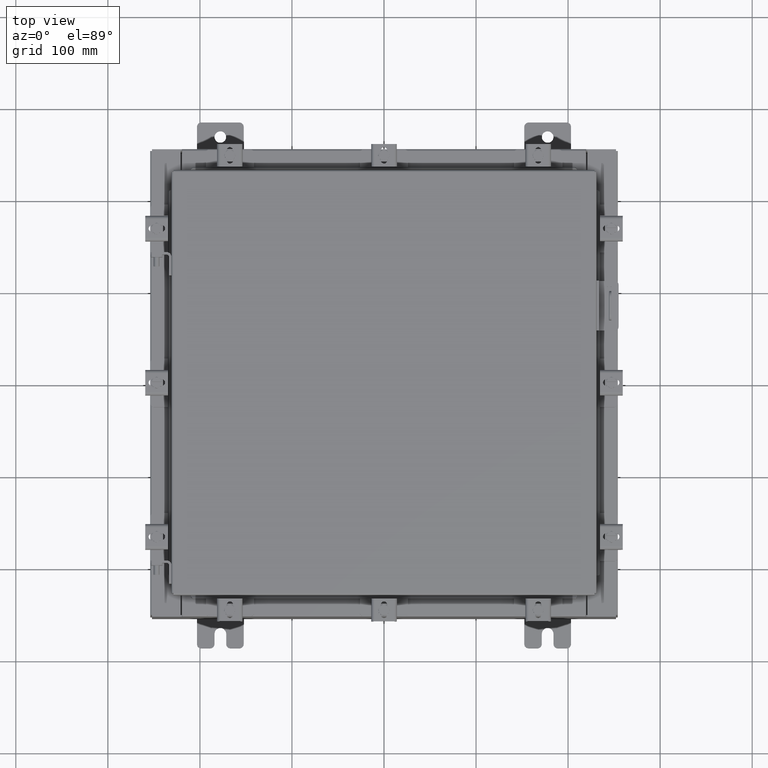
[diagram: clean part render]
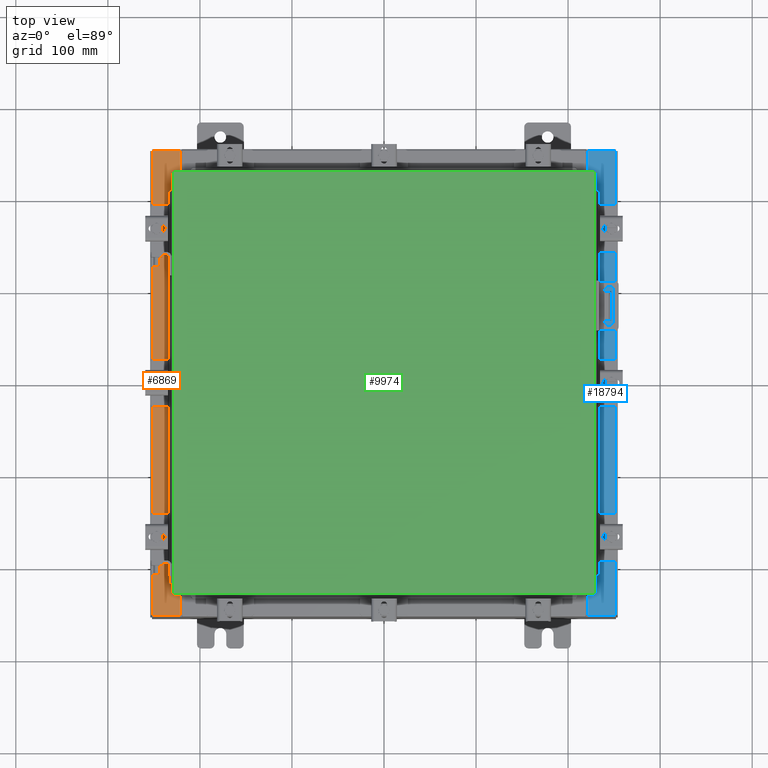
[diagram: same view with three faces highlighted in distinct colors, each labeled with its STEP entity id]
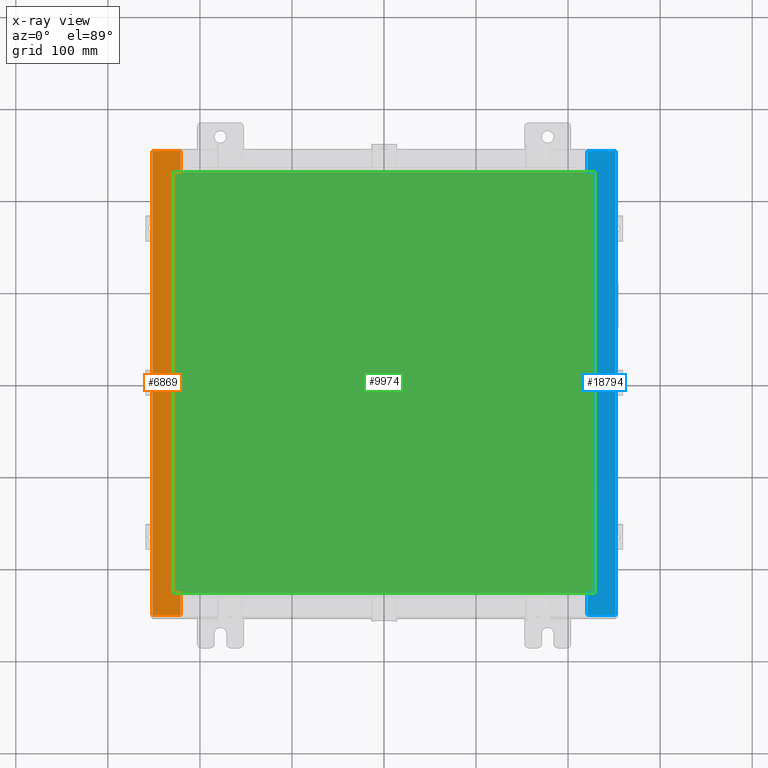
[diagram: x-ray of the same camera — body ghosted, the three highlighted faces saturated]
A machine part, top view with three faces highlighted in distinct colors.
The next image is the same camera in x-ray (body ghosted, the three faces saturated) — at least one of them is partly hidden behind the body in this view.
Their STEP definitions:

[orange] entity #6869 — the highlighted planar face has unit normal (0, -0, -1).
#27 = VECTOR ( 'NONE', #8534, 39.37007874015748100 ) ;
#179 = CIRCLE ( 'NONE', #11631, 0.01867499999999949400 ) ;
#198 = CARTESIAN_POINT ( 'NONE',  ( -8.699700000000019500, -6.316282040856369400E-016, 5.925300000000008000 ) ) ;
#333 = CARTESIAN_POINT ( 'NONE',  ( -8.750050000000023000, 8.593749999999998200, 5.925300000000008000 ) ) ;
#467 = VECTOR ( 'NONE', #1986, 39.37007874015748100 ) ;
#1004 = LINE ( 'NONE', #198, #467 ) ;
#1140 = ORIENTED_EDGE ( 'NONE', *, *, #18604, .F. ) ;
#1303 = AXIS2_PLACEMENT_3D ( 'NONE', #2077, #14276, #3800 ) ;
#1462 = DIRECTION ( 'NONE',  ( -1.000000000000000000, 3.566381192773190000E-015, -7.132762385546365800E-015 ) ) ;
#1624 = DIRECTION ( 'NONE',  ( -1.000000000000000000, 0.0000000000000000000, 0.0000000000000000000 ) ) ;
#1711 = CARTESIAN_POINT ( 'NONE',  ( -9.912300000000019700, -9.925299999999992900, 5.925299999999999100 ) ) ;
#1736 = LINE ( 'NONE', #5111, #15096 ) ;
#1924 = ORIENTED_EDGE ( 'NONE', *, *, #12157, .T. ) ;
#1986 = DIRECTION ( 'NONE',  ( -1.100963394019027400E-016, 1.000000000000000000, -5.504816970095217300E-017 ) ) ;
#2077 = CARTESIAN_POINT ( 'NONE',  ( -8.750050000000023000, -8.612425000000007100, 5.925300000000007100 ) ) ;
#2118 = ORIENTED_EDGE ( 'NONE', *, *, #21176, .F. ) ;
#2362 = VERTEX_POINT ( 'NONE', #10740 ) ;
#2538 = VERTEX_POINT ( 'NONE', #9430 ) ;
#2878 = DIRECTION ( 'NONE',  ( 1.000000000000000000, -2.170286390199814100E-014, 2.170286390199814100E-014 ) ) ;
#3055 = EDGE_CURVE ( 'NONE', #20163, #18557, #11745, .T. ) ;
#3220 = CARTESIAN_POINT ( 'NONE',  ( -8.750050000000023000, 8.593749999999998200, 5.925300000000007100 ) ) ;
#3800 = DIRECTION ( 'NONE',  ( 1.000000000000000000, 0.0000000000000000000, 0.0000000000000000000 ) ) ;
#4697 = AXIS2_PLACEMENT_3D ( 'NONE', #15528, #22559, #12166 ) ;
#5111 = CARTESIAN_POINT ( 'NONE',  ( -8.712700000000021200, -8.593750000000008900, 5.925300000000007100 ) ) ;
#5177 = CARTESIAN_POINT ( 'NONE',  ( -8.750050000000023000, -8.593750000000008900, 5.925300000000008000 ) ) ;
#6288 = FACE_OUTER_BOUND ( 'NONE', #13273, .T. ) ;
#6490 = VECTOR ( 'NONE', #8003, 39.37007874015748100 ) ;
#6494 = CARTESIAN_POINT ( 'NONE',  ( -8.699700000000017800, -8.631100000000007100, 5.925300000000008000 ) ) ;
#6869 = ADVANCED_FACE ( 'NONE', ( #6288 ), #6904, .F. ) ;
#6904 = PLANE ( 'NONE',  #4697 ) ;
#6983 = DIRECTION ( 'NONE',  ( -1.000000000000000000, -2.170286390199908100E-014, -2.170286390199908100E-014 ) ) ;
#7011 = ORIENTED_EDGE ( 'NONE', *, *, #17493, .F. ) ;
#7110 = VECTOR ( 'NONE', #22415, 39.37007874015748100 ) ;
#7753 = ORIENTED_EDGE ( 'NONE', *, *, #3055, .F. ) ;
#8003 = DIRECTION ( 'NONE',  ( 1.000000000000000000, -8.915952981932958000E-015, 7.132762385546365800E-015 ) ) ;
#8110 = VERTEX_POINT ( 'NONE', #19032 ) ;
#8141 = CARTESIAN_POINT ( 'NONE',  ( -8.750050000000023000, 8.631099999999998200, 5.925300000000007100 ) ) ;
#8240 = CARTESIAN_POINT ( 'NONE',  ( -8.699700000000019500, 9.925299999999998200, 5.925300000000008000 ) ) ;
#8534 = DIRECTION ( 'NONE',  ( -0.0000000000000000000, 1.000000000000000000, -5.504816970095139000E-017 ) ) ;
#9223 = VERTEX_POINT ( 'NONE', #15290 ) ;
#9250 = ORIENTED_EDGE ( 'NONE', *, *, #11535, .T. ) ;
#9420 = ORIENTED_EDGE ( 'NONE', *, *, #17098, .F. ) ;
#9430 = CARTESIAN_POINT ( 'NONE',  ( -8.699700000000019500, 8.631100000000000000, 5.925300000000008000 ) ) ;
#10037 = ORIENTED_EDGE ( 'NONE', *, *, #11575, .F. ) ;
#10248 = CARTESIAN_POINT ( 'NONE',  ( -8.750050000000023000, 8.612424999999998200, 5.925300000000007100 ) ) ;
#10503 = VERTEX_POINT ( 'NONE', #5177 ) ;
#10511 = CARTESIAN_POINT ( 'NONE',  ( -8.699700000000019500, 8.631100000000000000, 5.925300000000008000 ) ) ;
#10610 = LINE ( 'NONE', #15111, #19314 ) ;
#10740 = CARTESIAN_POINT ( 'NONE',  ( -8.699700000000017800, -9.925300000000005300, 5.925300000000008000 ) ) ;
#11133 = LINE ( 'NONE', #18432, #6490 ) ;
#11535 = EDGE_CURVE ( 'NONE', #13320, #2362, #11133, .T. ) ;
#11575 = EDGE_CURVE ( 'NONE', #8110, #14248, #10610, .T. ) ;
#11631 = AXIS2_PLACEMENT_3D ( 'NONE', #10248, #22385, #11979 ) ;
#11745 = LINE ( 'NONE', #3220, #7110 ) ;
#11747 = ORIENTED_EDGE ( 'NONE', *, *, #15087, .T. ) ;
#11887 = CARTESIAN_POINT ( 'NONE',  ( -8.712700000000021200, -8.593750000000008900, 5.925300000000007100 ) ) ;
#11979 = DIRECTION ( 'NONE',  ( 1.000000000000000000, 0.0000000000000000000, 0.0000000000000000000 ) ) ;
#12157 = EDGE_CURVE ( 'NONE', #2362, #14248, #22054, .T. ) ;
#12166 = DIRECTION ( 'NONE',  ( -1.000000000000000000, 0.0000000000000000000, -7.132762385546365800E-015 ) ) ;
#12585 = ORIENTED_EDGE ( 'NONE', *, *, #14545, .F. ) ;
#13273 = EDGE_LOOP ( 'NONE', ( #9420, #11747, #14459, #1140, #9250, #1924, #10037, #12585, #7011, #16149, #7753, #2118 ) ) ;
#13320 = VERTEX_POINT ( 'NONE', #1711 ) ;
#13400 = LINE ( 'NONE', #17199, #27 ) ;
#13537 = CARTESIAN_POINT ( 'NONE',  ( -8.712700000000021200, 8.593749999999998200, 5.925300000000007100 ) ) ;
#13969 = VECTOR ( 'NONE', #1462, 39.37007874015748100 ) ;
#14248 = VERTEX_POINT ( 'NONE', #6494 ) ;
#14276 = DIRECTION ( 'NONE',  ( -7.132762385546365800E-015, 5.504816970095138400E-017, 1.000000000000000000 ) ) ;
#14459 = ORIENTED_EDGE ( 'NONE', *, *, #18002, .T. ) ;
#14518 = LINE ( 'NONE', #22268, #13969 ) ;
#14545 = EDGE_CURVE ( 'NONE', #10503, #8110, #19278, .T. ) ;
#14548 = DIRECTION ( 'NONE',  ( -0.0000000000000000000, -1.000000000000000000, -0.0000000000000000000 ) ) ;
#14769 = DIRECTION ( 'NONE',  ( -1.100963394019027400E-016, 1.000000000000000000, -5.504816970095217300E-017 ) ) ;
#14924 = VERTEX_POINT ( 'NONE', #8240 ) ;
#15087 = EDGE_CURVE ( 'NONE', #2538, #14924, #1004, .T. ) ;
#15096 = VECTOR ( 'NONE', #1624, 39.37007874015748100 ) ;
#15111 = CARTESIAN_POINT ( 'NONE',  ( -8.750050000000023000, -8.631100000000008900, 5.925300000000007100 ) ) ;
#15290 = CARTESIAN_POINT ( 'NONE',  ( -9.912300000000019700, 9.925300000000001800, 5.925299999999999100 ) ) ;
#15528 = CARTESIAN_POINT ( 'NONE',  ( -4.253145845136049800E-014, 3.261769198526533300E-016, 5.925300000000070200 ) ) ;
#15935 = VECTOR ( 'NONE', #6983, 39.37007874015748100 ) ;
#16149 = ORIENTED_EDGE ( 'NONE', *, *, #21526, .F. ) ;
#16453 = CARTESIAN_POINT ( 'NONE',  ( -8.699700000000019500, -6.316282040856369400E-016, 5.925300000000008000 ) ) ;
#16466 = LINE ( 'NONE', #10511, #15935 ) ;
#17098 = EDGE_CURVE ( 'NONE', #2538, #17915, #16466, .T. ) ;
#17199 = CARTESIAN_POINT ( 'NONE',  ( -9.912300000000019700, 9.925300000000000000, 5.925299999999999100 ) ) ;
#17384 = LINE ( 'NONE', #19784, #20892 ) ;
#17476 = VECTOR ( 'NONE', #14769, 39.37007874015748100 ) ;
#17493 = EDGE_CURVE ( 'NONE', #18007, #10503, #1736, .T. ) ;
#17915 = VERTEX_POINT ( 'NONE', #8141 ) ;
#18002 = EDGE_CURVE ( 'NONE', #14924, #9223, #14518, .T. ) ;
#18007 = VERTEX_POINT ( 'NONE', #11887 ) ;
#18432 = CARTESIAN_POINT ( 'NONE',  ( -1.310262593961222200E-013, -9.925300000000083500, 5.925300000000070200 ) ) ;
#18557 = VERTEX_POINT ( 'NONE', #13537 ) ;
#18604 = EDGE_CURVE ( 'NONE', #13320, #9223, #13400, .T. ) ;
#19032 = CARTESIAN_POINT ( 'NONE',  ( -8.750050000000023000, -8.631100000000008900, 5.925300000000008000 ) ) ;
#19278 = CIRCLE ( 'NONE', #1303, 0.01867499999999949400 ) ;
#19314 = VECTOR ( 'NONE', #2878, 39.37007874015748100 ) ;
#19784 = CARTESIAN_POINT ( 'NONE',  ( -8.712700000000021200, 8.593750000000000000, 5.925300000000007100 ) ) ;
#20163 = VERTEX_POINT ( 'NONE', #333 ) ;
#20892 = VECTOR ( 'NONE', #14548, 39.37007874015748100 ) ;
#21176 = EDGE_CURVE ( 'NONE', #17915, #20163, #179, .T. ) ;
#21526 = EDGE_CURVE ( 'NONE', #18557, #18007, #17384, .T. ) ;
#22054 = LINE ( 'NONE', #16453, #17476 ) ;
#22268 = CARTESIAN_POINT ( 'NONE',  ( -7.119878833487486500E-015, 9.925299999999968000, 5.925300000000070200 ) ) ;
#22385 = DIRECTION ( 'NONE',  ( -7.132762385546365800E-015, 5.504816970095138400E-017, 1.000000000000000000 ) ) ;
#22415 = DIRECTION ( 'NONE',  ( 1.000000000000000000, 0.0000000000000000000, 0.0000000000000000000 ) ) ;
#22559 = DIRECTION ( 'NONE',  ( 7.132762385546365800E-015, -5.504816970095137800E-017, -1.000000000000000000 ) ) ;

[blue] entity #18794 — the highlighted planar face has unit normal (-0, 0, -1).
#730 = CARTESIAN_POINT ( 'NONE',  ( 3.723850296363598500E-014, -3.261769198526533300E-016, 5.925300000000061300 ) ) ;
#1076 = VERTEX_POINT ( 'NONE', #10222 ) ;
#1402 = FACE_OUTER_BOUND ( 'NONE', #16197, .T. ) ;
#1410 = ORIENTED_EDGE ( 'NONE', *, *, #1783, .F. ) ;
#1503 = VERTEX_POINT ( 'NONE', #11283 ) ;
#1725 = CARTESIAN_POINT ( 'NONE',  ( 8.712700000000023000, -8.593750000000005300, 5.925300000000007100 ) ) ;
#1783 = EDGE_CURVE ( 'NONE', #21078, #17461, #2260, .T. ) ;
#2260 = CIRCLE ( 'NONE', #6163, 0.01867500000000058700 ) ;
#2417 = VECTOR ( 'NONE', #6521, 39.37007874015748100 ) ;
#2489 = DIRECTION ( 'NONE',  ( -1.000000000000000000, 0.0000000000000000000, 6.241167087353080700E-015 ) ) ;
#2925 = ORIENTED_EDGE ( 'NONE', *, *, #3136, .T. ) ;
#3136 = EDGE_CURVE ( 'NONE', #18792, #17436, #19372, .T. ) ;
#3915 = EDGE_CURVE ( 'NONE', #12539, #21078, #16614, .T. ) ;
#3934 = ORIENTED_EDGE ( 'NONE', *, *, #4840, .F. ) ;
#4220 = DIRECTION ( 'NONE',  ( 1.000000000000000000, 3.566381192773195500E-015, -6.241167087353082300E-015 ) ) ;
#4400 = CARTESIAN_POINT ( 'NONE',  ( 8.699700000000021300, 6.316282040856369400E-016, 5.925300000000007100 ) ) ;
#4767 = CARTESIAN_POINT ( 'NONE',  ( 1.843997395723377600E-015, 9.925299999999964500, 5.925300000000062200 ) ) ;
#4840 = EDGE_CURVE ( 'NONE', #1503, #1076, #20533, .T. ) ;
#4912 = VERTEX_POINT ( 'NONE', #16901 ) ;
#4963 = CARTESIAN_POINT ( 'NONE',  ( 8.699700000000021300, -9.925300000000001800, 5.925300000000005300 ) ) ;
#5086 = VERTEX_POINT ( 'NONE', #15547 ) ;
#5426 = VERTEX_POINT ( 'NONE', #22294 ) ;
#5449 = EDGE_CURVE ( 'NONE', #4912, #1503, #6624, .T. ) ;
#5628 = EDGE_CURVE ( 'NONE', #19620, #5426, #17786, .T. ) ;
#5687 = VECTOR ( 'NONE', #7650, 39.37007874015748100 ) ;
#5746 = ORIENTED_EDGE ( 'NONE', *, *, #10930, .T. ) ;
#6163 = AXIS2_PLACEMENT_3D ( 'NONE', #10111, #22230, #11861 ) ;
#6508 = CARTESIAN_POINT ( 'NONE',  ( 9.912300000000019700, 9.925299999999998200, 5.925300000000000000 ) ) ;
#6514 = ORIENTED_EDGE ( 'NONE', *, *, #8425, .T. ) ;
#6521 = DIRECTION ( 'NONE',  ( -1.000000000000000000, -3.566381192773189200E-015, 6.241167087353082300E-015 ) ) ;
#6624 = CIRCLE ( 'NONE', #18988, 0.01867500000000058700 ) ;
#6897 = EDGE_CURVE ( 'NONE', #1076, #12539, #10408, .T. ) ;
#7169 = CARTESIAN_POINT ( 'NONE',  ( 9.912300000000019700, -9.925300000000000000, 5.925299999999999100 ) ) ;
#7650 = DIRECTION ( 'NONE',  ( -1.000000000000000000, 2.170286390199861100E-014, 0.0000000000000000000 ) ) ;
#7688 = PLANE ( 'NONE',  #9273 ) ;
#7966 = VECTOR ( 'NONE', #17607, 39.37007874015748100 ) ;
#8143 = VECTOR ( 'NONE', #20350, 39.37007874015748100 ) ;
#8425 = EDGE_CURVE ( 'NONE', #17436, #5426, #12850, .T. ) ;
#8582 = CARTESIAN_POINT ( 'NONE',  ( 8.750050000000023000, 8.631099999999994700, 5.925300000000007100 ) ) ;
#8748 = DIRECTION ( 'NONE',  ( 1.100963394019028000E-016, -1.000000000000000000, -5.504816970095207400E-017 ) ) ;
#8764 = CARTESIAN_POINT ( 'NONE',  ( 8.712700000000023000, 8.593749999999994700, 5.925300000000007100 ) ) ;
#9273 = AXIS2_PLACEMENT_3D ( 'NONE', #730, #12935, #2489 ) ;
#9444 = CARTESIAN_POINT ( 'NONE',  ( 8.699700000000021300, -8.631100000000005300, 5.925300000000007100 ) ) ;
#9768 = DIRECTION ( 'NONE',  ( 1.100963394019028000E-016, -1.000000000000000000, -5.504816970095207400E-017 ) ) ;
#9855 = VECTOR ( 'NONE', #20879, 39.37007874015748100 ) ;
#9915 = ORIENTED_EDGE ( 'NONE', *, *, #16208, .T. ) ;
#10060 = ORIENTED_EDGE ( 'NONE', *, *, #3915, .F. ) ;
#10111 = CARTESIAN_POINT ( 'NONE',  ( 8.750050000000023000, 8.612424999999992900, 5.925300000000007100 ) ) ;
#10222 = CARTESIAN_POINT ( 'NONE',  ( 8.712700000000023000, -8.593750000000005300, 5.925300000000007100 ) ) ;
#10252 = CARTESIAN_POINT ( 'NONE',  ( 8.750050000000023000, -8.612425000000005300, 5.925300000000007100 ) ) ;
#10408 = LINE ( 'NONE', #1725, #9855 ) ;
#10615 = LINE ( 'NONE', #16959, #8143 ) ;
#10930 = EDGE_CURVE ( 'NONE', #19620, #12936, #12255, .T. ) ;
#11283 = CARTESIAN_POINT ( 'NONE',  ( 8.750050000000023000, -8.593750000000005300, 5.925300000000007100 ) ) ;
#11861 = DIRECTION ( 'NONE',  ( 1.000000000000000000, 0.0000000000000000000, 0.0000000000000000000 ) ) ;
#11981 = DIRECTION ( 'NONE',  ( 1.000000000000000000, 0.0000000000000000000, 0.0000000000000000000 ) ) ;
#12165 = CARTESIAN_POINT ( 'NONE',  ( 8.699700000000021300, 6.316282040856369400E-016, 5.925300000000007100 ) ) ;
#12251 = CARTESIAN_POINT ( 'NONE',  ( 8.712700000000023000, 8.593749999999994700, 5.925300000000007100 ) ) ;
#12255 = LINE ( 'NONE', #4767, #2417 ) ;
#12327 = VECTOR ( 'NONE', #4220, 39.37007874015748100 ) ;
#12539 = VERTEX_POINT ( 'NONE', #8764 ) ;
#12823 = CARTESIAN_POINT ( 'NONE',  ( 8.750050000000023000, 8.631099999999994700, 5.925300000000007100 ) ) ;
#12850 = LINE ( 'NONE', #18262, #12327 ) ;
#12935 = DIRECTION ( 'NONE',  ( -6.241167087353080700E-015, 5.504816970095137800E-017, -1.000000000000000000 ) ) ;
#12936 = VERTEX_POINT ( 'NONE', #17926 ) ;
#13215 = VECTOR ( 'NONE', #9768, 39.37007874015748100 ) ;
#13346 = ORIENTED_EDGE ( 'NONE', *, *, #20282, .F. ) ;
#14433 = LINE ( 'NONE', #12823, #5687 ) ;
#14730 = VECTOR ( 'NONE', #8748, 39.37007874015748100 ) ;
#15547 = CARTESIAN_POINT ( 'NONE',  ( 8.699700000000019500, 8.631099999999994700, 5.925300000000007100 ) ) ;
#15934 = VECTOR ( 'NONE', #21799, 39.37007874015748100 ) ;
#16197 = EDGE_LOOP ( 'NONE', ( #19719, #2925, #6514, #16866, #5746, #9915, #13346, #1410, #10060, #22403, #3934, #21241 ) ) ;
#16208 = EDGE_CURVE ( 'NONE', #12936, #5086, #17854, .T. ) ;
#16614 = LINE ( 'NONE', #12251, #20696 ) ;
#16866 = ORIENTED_EDGE ( 'NONE', *, *, #5628, .F. ) ;
#16901 = CARTESIAN_POINT ( 'NONE',  ( 8.750050000000023000, -8.631100000000005300, 5.925300000000007100 ) ) ;
#16959 = CARTESIAN_POINT ( 'NONE',  ( 8.699700000000021300, -8.631100000000005300, 5.925300000000007100 ) ) ;
#17436 = VERTEX_POINT ( 'NONE', #4963 ) ;
#17461 = VERTEX_POINT ( 'NONE', #8582 ) ;
#17607 = DIRECTION ( 'NONE',  ( -0.0000000000000000000, -1.000000000000000000, -5.504816970095139000E-017 ) ) ;
#17786 = LINE ( 'NONE', #7169, #7966 ) ;
#17854 = LINE ( 'NONE', #4400, #13215 ) ;
#17926 = CARTESIAN_POINT ( 'NONE',  ( 8.699700000000019500, 9.925299999999992900, 5.925300000000008000 ) ) ;
#18262 = CARTESIAN_POINT ( 'NONE',  ( 7.263300853154859200E-014, -9.925300000000033800, 5.925300000000060400 ) ) ;
#18792 = VERTEX_POINT ( 'NONE', #9444 ) ;
#18794 = ADVANCED_FACE ( 'NONE', ( #1402 ), #7688, .F. ) ;
#18988 = AXIS2_PLACEMENT_3D ( 'NONE', #10252, #22389, #11981 ) ;
#19372 = LINE ( 'NONE', #12165, #14730 ) ;
#19620 = VERTEX_POINT ( 'NONE', #6508 ) ;
#19719 = ORIENTED_EDGE ( 'NONE', *, *, #20494, .F. ) ;
#20155 = CARTESIAN_POINT ( 'NONE',  ( 8.750050000000023000, -8.593750000000005300, 5.925300000000007100 ) ) ;
#20282 = EDGE_CURVE ( 'NONE', #17461, #5086, #14433, .T. ) ;
#20335 = CARTESIAN_POINT ( 'NONE',  ( 8.750050000000023000, 8.593749999999992900, 5.925300000000007100 ) ) ;
#20350 = DIRECTION ( 'NONE',  ( 1.000000000000000000, 2.170286390199955400E-014, 0.0000000000000000000 ) ) ;
#20494 = EDGE_CURVE ( 'NONE', #18792, #4912, #10615, .T. ) ;
#20533 = LINE ( 'NONE', #20155, #15934 ) ;
#20696 = VECTOR ( 'NONE', #20970, 39.37007874015748100 ) ;
#20879 = DIRECTION ( 'NONE',  ( -0.0000000000000000000, 1.000000000000000000, -0.0000000000000000000 ) ) ;
#20970 = DIRECTION ( 'NONE',  ( 1.000000000000000000, 0.0000000000000000000, 0.0000000000000000000 ) ) ;
#21078 = VERTEX_POINT ( 'NONE', #20335 ) ;
#21241 = ORIENTED_EDGE ( 'NONE', *, *, #5449, .F. ) ;
#21799 = DIRECTION ( 'NONE',  ( -1.000000000000000000, 0.0000000000000000000, 0.0000000000000000000 ) ) ;
#22230 = DIRECTION ( 'NONE',  ( 6.241167087353081500E-015, -5.504816970095138400E-017, 1.000000000000000000 ) ) ;
#22294 = CARTESIAN_POINT ( 'NONE',  ( 9.912300000000019700, -9.925299999999998200, 5.925299999999999100 ) ) ;
#22389 = DIRECTION ( 'NONE',  ( 6.241167087353081500E-015, -5.504816970095138400E-017, 1.000000000000000000 ) ) ;
#22403 = ORIENTED_EDGE ( 'NONE', *, *, #6897, .F. ) ;

[green] entity #9974 — the highlighted planar face has unit normal (0, 0, -1).
#265 = ORIENTED_EDGE ( 'NONE', *, *, #19542, .T. ) ;
#379 = CARTESIAN_POINT ( 'NONE',  ( -9.006299999999997800, 9.006299999999999500, -1.092739197465705300E-015 ) ) ;
#865 = VECTOR ( 'NONE', #15330, 39.37007874015748100 ) ;
#1537 = EDGE_CURVE ( 'NONE', #1641, #20253, #6073, .T. ) ;
#1641 = VERTEX_POINT ( 'NONE', #9797 ) ;
#2002 = DIRECTION ( 'NONE',  ( -1.000000000000000000, 0.0000000000000000000, -0.0000000000000000000 ) ) ;
#2106 = EDGE_CURVE ( 'NONE', #20253, #19672, #5512, .T. ) ;
#2519 = LINE ( 'NONE', #379, #20516 ) ;
#2850 = DIRECTION ( 'NONE',  ( 1.000000000000000000, -0.0000000000000000000, -0.0000000000000000000 ) ) ;
#3156 = CARTESIAN_POINT ( 'NONE',  ( -9.006299999999997800, 9.006299999999999500, -1.092739197465705300E-015 ) ) ;
#4030 = CARTESIAN_POINT ( 'NONE',  ( 9.006300000000001300, 9.006299999999999500, 0.0000000000000000000 ) ) ;
#5512 = LINE ( 'NONE', #20474, #865 ) ;
#6073 = LINE ( 'NONE', #10276, #15924 ) ;
#7403 = ORIENTED_EDGE ( 'NONE', *, *, #17667, .T. ) ;
#8956 = PLANE ( 'NONE',  #21063 ) ;
#9797 = CARTESIAN_POINT ( 'NONE',  ( 9.006300000000001300, -9.006299999999999500, 0.0000000000000000000 ) ) ;
#9974 = ADVANCED_FACE ( 'NONE', ( #15857 ), #8956, .F. ) ;
#10276 = CARTESIAN_POINT ( 'NONE',  ( 9.006300000000001300, -9.006299999999999500, 0.0000000000000000000 ) ) ;
#12012 = VECTOR ( 'NONE', #2850, 39.37007874015748100 ) ;
#12440 = DIRECTION ( 'NONE',  ( 0.0000000000000000000, 0.0000000000000000000, -1.000000000000000000 ) ) ;
#13224 = CARTESIAN_POINT ( 'NONE',  ( -9.006299999999997800, -9.006299999999999500, 0.0000000000000000000 ) ) ;
#15330 = DIRECTION ( 'NONE',  ( -1.000000000000000000, -0.0000000000000000000, -0.0000000000000000000 ) ) ;
#15537 = EDGE_LOOP ( 'NONE', ( #265, #18532, #16612, #7403 ) ) ;
#15857 = FACE_OUTER_BOUND ( 'NONE', #15537, .T. ) ;
#15924 = VECTOR ( 'NONE', #20668, 39.37007874015748100 ) ;
#15961 = CARTESIAN_POINT ( 'NONE',  ( -9.006299999999997800, -9.006299999999999500, 0.0000000000000000000 ) ) ;
#16094 = DIRECTION ( 'NONE',  ( 0.0000000000000000000, -1.000000000000000000, 0.0000000000000000000 ) ) ;
#16612 = ORIENTED_EDGE ( 'NONE', *, *, #2106, .T. ) ;
#17629 = VERTEX_POINT ( 'NONE', #15961 ) ;
#17667 = EDGE_CURVE ( 'NONE', #19672, #17629, #2519, .T. ) ;
#18532 = ORIENTED_EDGE ( 'NONE', *, *, #1537, .T. ) ;
#19542 = EDGE_CURVE ( 'NONE', #17629, #1641, #21211, .T. ) ;
#19672 = VERTEX_POINT ( 'NONE', #3156 ) ;
#20253 = VERTEX_POINT ( 'NONE', #4030 ) ;
#20474 = CARTESIAN_POINT ( 'NONE',  ( 9.006300000000001300, 9.006299999999999500, 0.0000000000000000000 ) ) ;
#20516 = VECTOR ( 'NONE', #16094, 39.37007874015748100 ) ;
#20668 = DIRECTION ( 'NONE',  ( 0.0000000000000000000, 1.000000000000000000, 0.0000000000000000000 ) ) ;
#21063 = AXIS2_PLACEMENT_3D ( 'NONE', #21086, #12440, #2002 ) ;
#21086 = CARTESIAN_POINT ( 'NONE',  ( 0.0000000000000000000, 0.0000000000000000000, 0.0000000000000000000 ) ) ;
#21211 = LINE ( 'NONE', #13224, #12012 ) ;